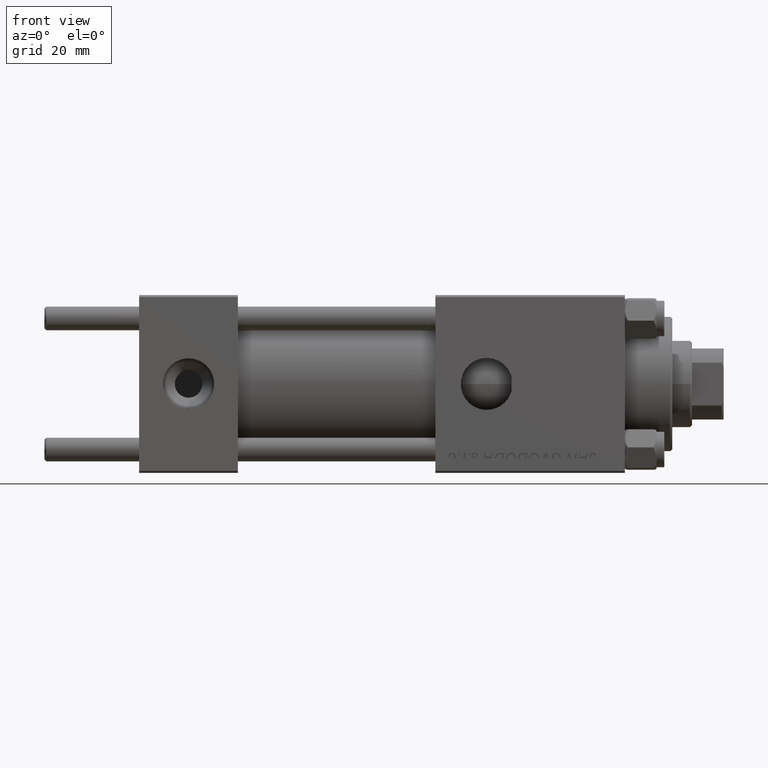
[diagram: clean part render]
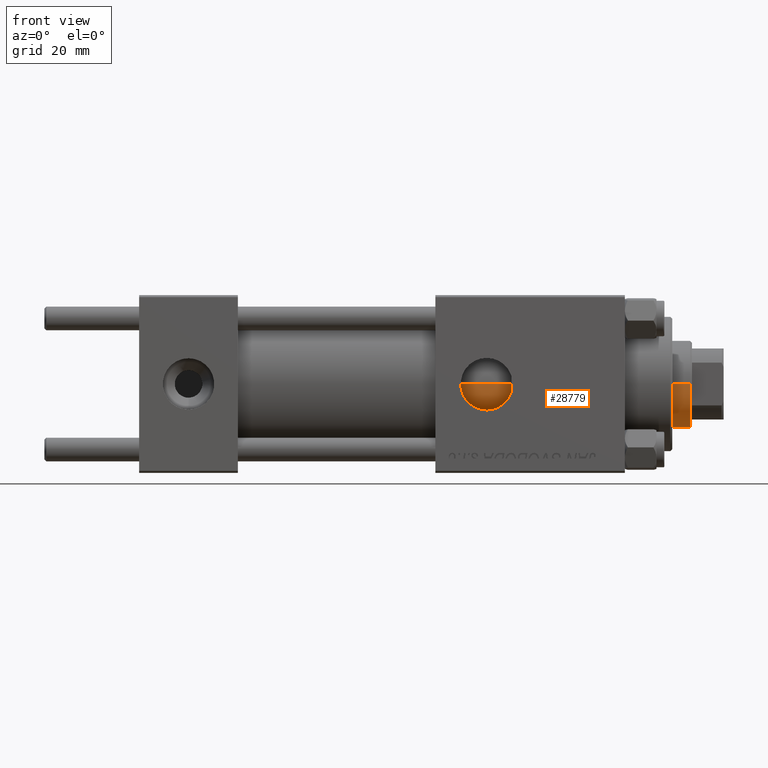
[diagram: same view with one face highlighted and labeled with its STEP entity id]
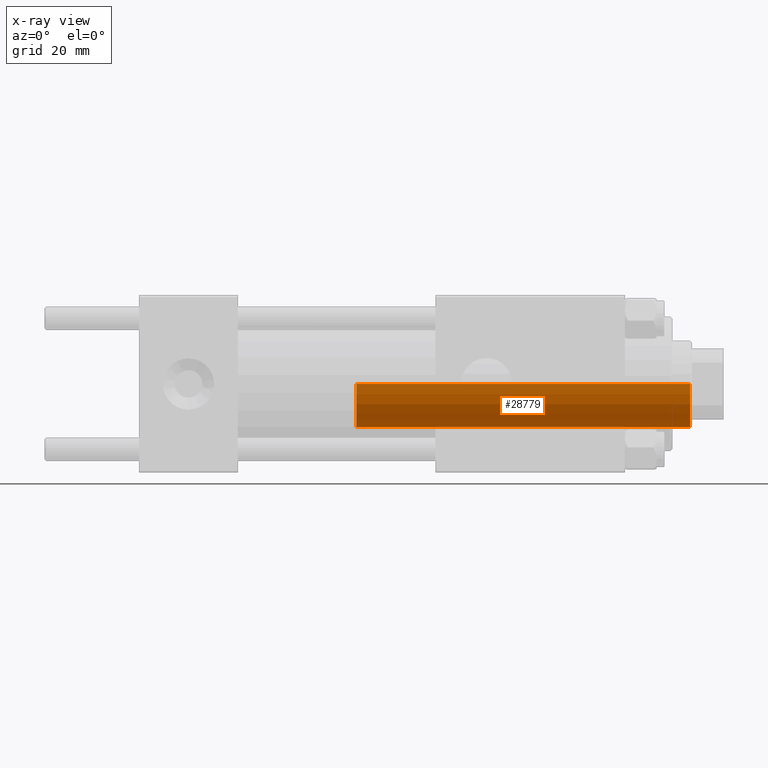
[diagram: x-ray of the same camera — body ghosted, the highlighted face saturated]
A machine part, front view. The second image highlights one B-rep face of the part: STEP entity #28779.
The next image is the same camera in x-ray: the body ghosted, the highlighted face saturated — about 1% of this face is hidden behind the body in this view.
In plain terms, the highlighted cylindrical surface (partial cylindrical patch) has radius 11 mm, axis along (-1, 0, 0).
Its self-contained STEP definition (entity closure, byte-faithful):
#254 = DIRECTION ( 'NONE',  ( 0.000000000000000000, 0.000000000000000000, -1.000000000000000000 ) ) ;
#345 = DIRECTION ( 'NONE',  ( -0.000000000000000000, -0.000000000000000000, -1.000000000000000000 ) ) ;
#1330 = ORIENTED_EDGE ( 'NONE', *, *, #8387, .T. ) ;
#1479 = CARTESIAN_POINT ( 'NONE',  ( 0.000000000000000000, 0.000000000000000000, 115.0000000000000000 ) ) ;
#3213 = EDGE_CURVE ( 'NONE', #28268, #19491, #12186, .T. ) ;
#4819 = CARTESIAN_POINT ( 'NONE',  ( 11.00000000000000000, 1.347111479062088405E-15, 115.0000000000000000 ) ) ;
#6206 = EDGE_CURVE ( 'NONE', #32997, #33838, #33193, .T. ) ;
#6571 = ORIENTED_EDGE ( 'NONE', *, *, #28655, .T. ) ;
#6632 = AXIS2_PLACEMENT_3D ( 'NONE', #1479, #21727, #8849 ) ;
#7030 = CARTESIAN_POINT ( 'NONE',  ( 0.000000000000000000, 0.000000000000000000, 30.00000000000000000 ) ) ;
#7214 = VECTOR ( 'NONE', #345, 1000.000000000000000 ) ;
#7981 = CARTESIAN_POINT ( 'NONE',  ( -11.00000000000000000, 0.000000000000000000, 115.0000000000000000 ) ) ;
#8387 = EDGE_CURVE ( 'NONE', #28268, #32997, #13295, .T. ) ;
#8762 = DIRECTION ( 'NONE',  ( -0.000000000000000000, -0.000000000000000000, -1.000000000000000000 ) ) ;
#8849 = DIRECTION ( 'NONE',  ( -1.000000000000000000, 0.000000000000000000, 0.000000000000000000 ) ) ;
#12186 = LINE ( 'NONE', #7981, #7214 ) ;
#13181 = VECTOR ( 'NONE', #8762, 1000.000000000000000 ) ;
#13295 = CIRCLE ( 'NONE', #35948, 11.00000000000000000 ) ;
#15757 = CARTESIAN_POINT ( 'NONE',  ( 0.000000000000000000, 0.000000000000000000, 114.5000000000000142 ) ) ;
#18258 = ORIENTED_EDGE ( 'NONE', *, *, #6206, .T. ) ;
#19114 = DIRECTION ( 'NONE',  ( 0.000000000000000000, 0.000000000000000000, 1.000000000000000000 ) ) ;
#19491 = VERTEX_POINT ( 'NONE', #44125 ) ;
#20526 = CARTESIAN_POINT ( 'NONE',  ( 11.00000000000000000, 1.347111479062088405E-15, 114.5000000000000142 ) ) ;
#21727 = DIRECTION ( 'NONE',  ( -0.000000000000000000, -0.000000000000000000, -1.000000000000000000 ) ) ;
#23391 = DIRECTION ( 'NONE',  ( 1.000000000000000000, 0.000000000000000000, 0.000000000000000000 ) ) ;
#24036 = EDGE_LOOP ( 'NONE', ( #1330, #18258, #6571, #38737 ) ) ;
#25963 = CIRCLE ( 'NONE', #31807, 11.00000000000000000 ) ;
#28268 = VERTEX_POINT ( 'NONE', #34164 ) ;
#28655 = EDGE_CURVE ( 'NONE', #33838, #19491, #25963, .T. ) ;
#28779 = ADVANCED_FACE ( 'NONE', ( #33282 ), #29075, .T. ) ;
#29075 = CYLINDRICAL_SURFACE ( 'NONE', #6632, 11.00000000000000000 ) ;
#31807 = AXIS2_PLACEMENT_3D ( 'NONE', #7030, #19114, #42538 ) ;
#32997 = VERTEX_POINT ( 'NONE', #20526 ) ;
#33193 = LINE ( 'NONE', #4819, #13181 ) ;
#33282 = FACE_OUTER_BOUND ( 'NONE', #24036, .T. ) ;
#33838 = VERTEX_POINT ( 'NONE', #46975 ) ;
#34164 = CARTESIAN_POINT ( 'NONE',  ( -11.00000000000000000, 0.000000000000000000, 114.5000000000000142 ) ) ;
#35948 = AXIS2_PLACEMENT_3D ( 'NONE', #15757, #254, #23391 ) ;
#38737 = ORIENTED_EDGE ( 'NONE', *, *, #3213, .F. ) ;
#42538 = DIRECTION ( 'NONE',  ( 1.000000000000000000, 0.000000000000000000, 0.000000000000000000 ) ) ;
#44125 = CARTESIAN_POINT ( 'NONE',  ( -11.00000000000000000, 0.000000000000000000, 30.00000000000000000 ) ) ;
#46975 = CARTESIAN_POINT ( 'NONE',  ( 11.00000000000000000, 1.347111479062088405E-15, 30.00000000000000000 ) ) ;